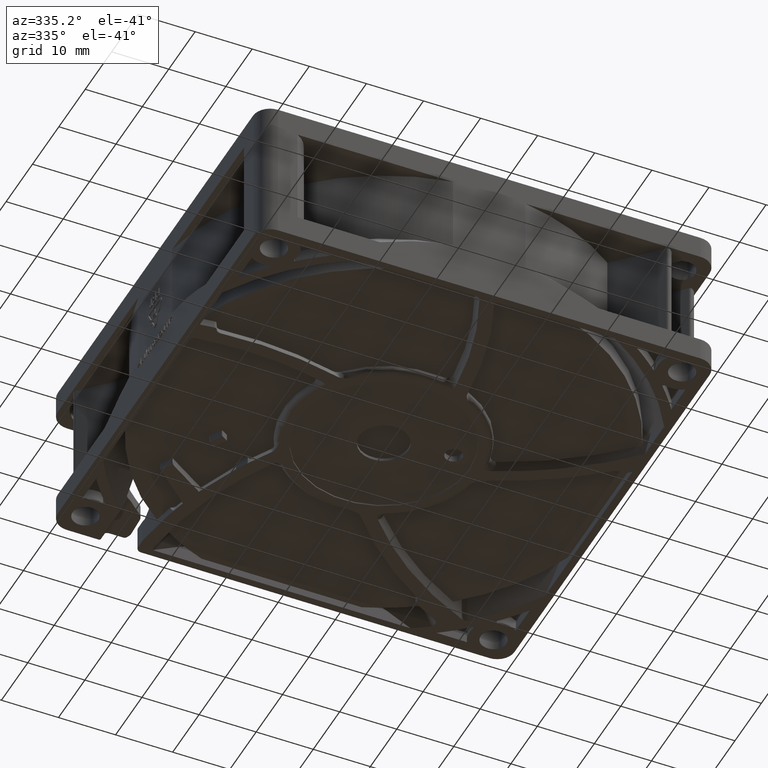
[diagram: clean part render]
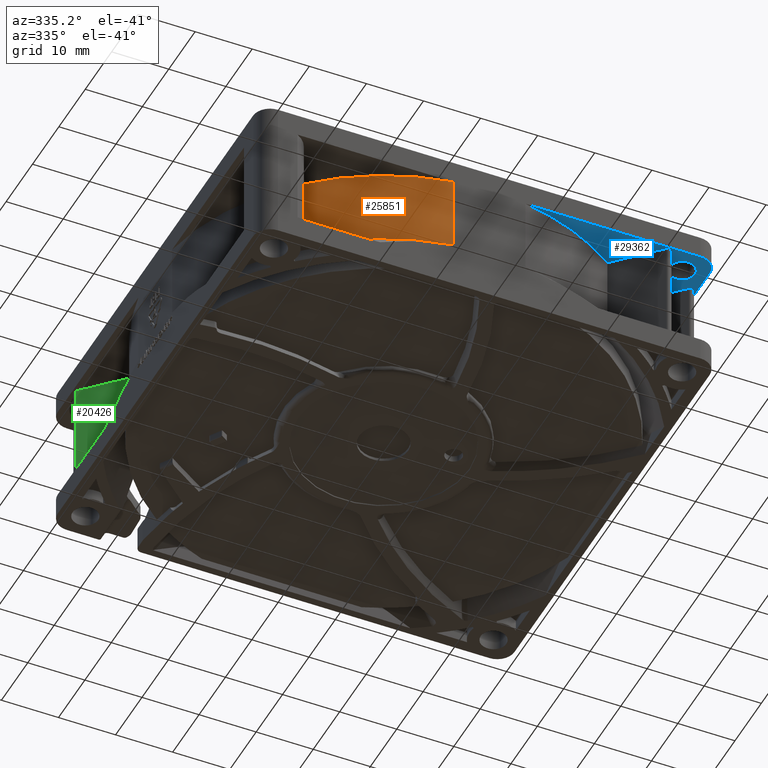
[diagram: same view with three faces highlighted in distinct colors, each labeled with its STEP entity id]
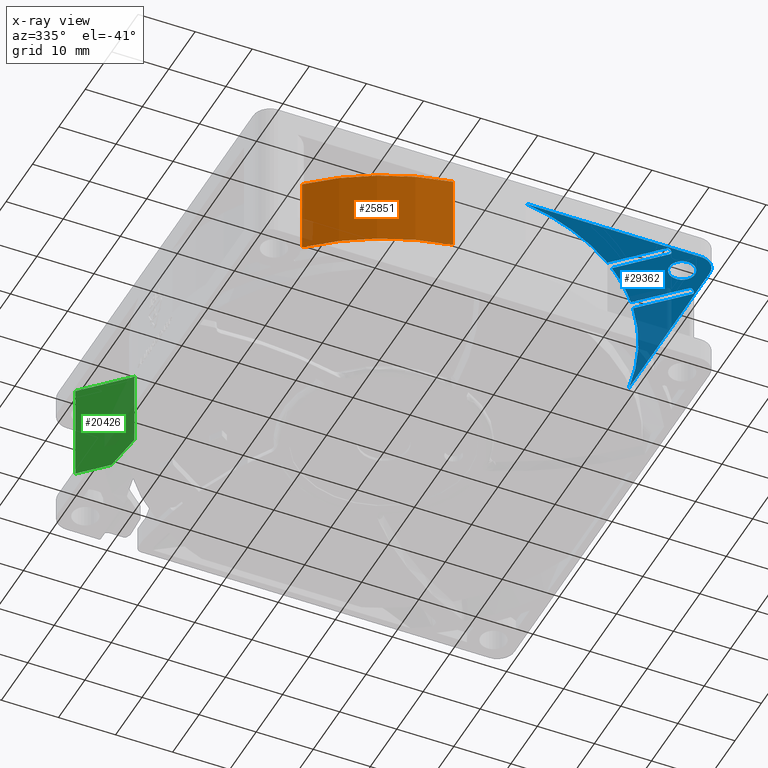
[diagram: x-ray of the same camera — body ghosted, the three highlighted faces saturated]
A machine part, auxiliary view with three faces highlighted in distinct colors.
The next image is the same camera in x-ray (body ghosted, the three faces saturated) — at least one of them is partly hidden behind the body in this view.
Their STEP definitions:

[orange] entity #25851 — the highlighted cylindrical surface (partial cylindrical patch) has radius 40.5 mm, axis along (-0, -0, 1).
#507 = CIRCLE ( 'NONE', #6168, 40.50000000000000000 ) ;
#3538 = FACE_OUTER_BOUND ( 'NONE', #7563, .T. ) ;
#3692 = VERTEX_POINT ( 'NONE', #8561 ) ;
#5702 = ORIENTED_EDGE ( 'NONE', *, *, #28337, .F. ) ;
#5842 = DIRECTION ( 'NONE',  ( -0.0000000000000000000, -0.0000000000000000000, 1.000000000000000000 ) ) ;
#6168 = AXIS2_PLACEMENT_3D ( 'NONE', #22745, #5842, #28241 ) ;
#6400 = CARTESIAN_POINT ( 'NONE',  ( -27.92198681256904500, -29.33620037494155100, -17.27999999999999800 ) ) ;
#6644 = CARTESIAN_POINT ( 'NONE',  ( 0.0000000000000000000, 0.0000000000000000000, 0.0000000000000000000 ) ) ;
#7563 = EDGE_LOOP ( 'NONE', ( #5702, #35670, #11071, #22264 ) ) ;
#7956 = AXIS2_PLACEMENT_3D ( 'NONE', #6644, #23443, #12413 ) ;
#8561 = CARTESIAN_POINT ( 'NONE',  ( -6.344288770224801900, -39.99999999999999300, -3.999999999999999100 ) ) ;
#9716 = EDGE_CURVE ( 'NONE', #21097, #3692, #27296, .T. ) ;
#11039 = CARTESIAN_POINT ( 'NONE',  ( -27.92198681256904200, -29.33620037494154400, -500000.0000000000600 ) ) ;
#11071 = ORIENTED_EDGE ( 'NONE', *, *, #9716, .T. ) ;
#11219 = EDGE_CURVE ( 'NONE', #19599, #3692, #507, .T. ) ;
#12413 = DIRECTION ( 'NONE',  ( 1.000000000000000000, 0.0000000000000000000, 0.0000000000000000000 ) ) ;
#13100 = DIRECTION ( 'NONE',  ( 1.000000000000000000, 0.0000000000000000000, 0.0000000000000000000 ) ) ;
#14481 = CARTESIAN_POINT ( 'NONE',  ( -27.92198681256904200, -29.33620037494154400, -3.999999999999999100 ) ) ;
#14790 = CARTESIAN_POINT ( 'NONE',  ( -6.344288770224801900, -39.99999999999999300, -17.27999999999999800 ) ) ;
#15087 = CYLINDRICAL_SURFACE ( 'NONE', #7956, 40.50000000000000000 ) ;
#16635 = CARTESIAN_POINT ( 'NONE',  ( -6.344288770224801900, -39.99999999999999300, 0.0000000000000000000 ) ) ;
#18411 = DIRECTION ( 'NONE',  ( -0.0000000000000000000, -0.0000000000000000000, 1.000000000000000000 ) ) ;
#19599 = VERTEX_POINT ( 'NONE', #14481 ) ;
#21097 = VERTEX_POINT ( 'NONE', #14790 ) ;
#22264 = ORIENTED_EDGE ( 'NONE', *, *, #11219, .F. ) ;
#22745 = CARTESIAN_POINT ( 'NONE',  ( 0.0000000000000000000, 0.0000000000000000000, -3.999999999999999100 ) ) ;
#23390 = VECTOR ( 'NONE', #30900, 1000.000000000000000 ) ;
#23443 = DIRECTION ( 'NONE',  ( -0.0000000000000000000, -0.0000000000000000000, 1.000000000000000000 ) ) ;
#25851 = ADVANCED_FACE ( 'NONE', ( #3538 ), #15087, .T. ) ;
#27274 = VERTEX_POINT ( 'NONE', #6400 ) ;
#27296 = LINE ( 'NONE', #16635, #30393 ) ;
#27774 = CIRCLE ( 'NONE', #36687, 40.50000000000000000 ) ;
#28241 = DIRECTION ( 'NONE',  ( 1.000000000000000000, 0.0000000000000000000, 0.0000000000000000000 ) ) ;
#28337 = EDGE_CURVE ( 'NONE', #27274, #19599, #30535, .T. ) ;
#30393 = VECTOR ( 'NONE', #36907, 1000.000000000000000 ) ;
#30535 = LINE ( 'NONE', #11039, #23390 ) ;
#30900 = DIRECTION ( 'NONE',  ( -0.0000000000000000000, -0.0000000000000000000, 1.000000000000000000 ) ) ;
#31379 = EDGE_CURVE ( 'NONE', #27274, #21097, #27774, .T. ) ;
#35462 = CARTESIAN_POINT ( 'NONE',  ( 0.0000000000000000000, 0.0000000000000000000, -17.27999999999999800 ) ) ;
#35670 = ORIENTED_EDGE ( 'NONE', *, *, #31379, .T. ) ;
#36687 = AXIS2_PLACEMENT_3D ( 'NONE', #35462, #18411, #13100 ) ;
#36907 = DIRECTION ( 'NONE',  ( -0.0000000000000000000, -0.0000000000000000000, 1.000000000000000000 ) ) ;

[blue] entity #29362 — the highlighted planar face has unit normal (0, -0, 1).
#118 = CARTESIAN_POINT ( 'NONE',  ( 32.28517677218592800, -39.21482322781408700, -4.000000000000000000 ) ) ;
#674 = EDGE_CURVE ( 'NONE', #6509, #34739, #15394, .T. ) ;
#744 = AXIS2_PLACEMENT_3D ( 'NONE', #1094, #32287, #9905 ) ;
#884 = CARTESIAN_POINT ( 'NONE',  ( 32.50424371614428800, -24.16038369814302200, -3.999999999999999100 ) ) ;
#1094 = CARTESIAN_POINT ( 'NONE',  ( 38.86126983722081000, -31.93162338159265100, -4.000000000019099400 ) ) ;
#1863 = CARTESIAN_POINT ( 'NONE',  ( 24.16038369814302200, -32.50424371614428800, -3.999999999999999100 ) ) ;
#2073 = CARTESIAN_POINT ( 'NONE',  ( 0.0000000000000000000, 0.0000000000000000000, -3.999999999999999100 ) ) ;
#2623 = LINE ( 'NONE', #23142, #8835 ) ;
#3274 = VERTEX_POINT ( 'NONE', #34568 ) ;
#3375 = ORIENTED_EDGE ( 'NONE', *, *, #21165, .F. ) ;
#3484 = CARTESIAN_POINT ( 'NONE',  ( 35.75000000000000000, -35.75000000000000000, -4.000000000000000000 ) ) ;
#3903 = ORIENTED_EDGE ( 'NONE', *, *, #22199, .T. ) ;
#4080 = VERTEX_POINT ( 'NONE', #17133 ) ;
#4225 = AXIS2_PLACEMENT_3D ( 'NONE', #15832, #35722, #18688 ) ;
#4335 = CIRCLE ( 'NONE', #15922, 0.5000000000000004400 ) ;
#4372 = CARTESIAN_POINT ( 'NONE',  ( 31.93162338159265100, -38.86126983722081000, -4.000000000019099400 ) ) ;
#4467 = ORIENTED_EDGE ( 'NONE', *, *, #17223, .F. ) ;
#4480 = DIRECTION ( 'NONE',  ( -0.0000000000000000000, -0.0000000000000000000, 1.000000000000000000 ) ) ;
#4481 = AXIS2_PLACEMENT_3D ( 'NONE', #5869, #31481, #8735 ) ;
#4757 = DIRECTION ( 'NONE',  ( -1.000000000000000000, -8.673617379884035500E-017, -0.0000000000000000000 ) ) ;
#4893 = DIRECTION ( 'NONE',  ( 1.000000000000000000, 0.0000000000000000000, 0.0000000000000000000 ) ) ;
#5483 = LINE ( 'NONE', #26707, #22398 ) ;
#5846 = VERTEX_POINT ( 'NONE', #17400 ) ;
#5869 = CARTESIAN_POINT ( 'NONE',  ( 0.0000000000000000000, 0.0000000000000000000, -3.999999999999999100 ) ) ;
#6062 = ORIENTED_EDGE ( 'NONE', *, *, #13313, .T. ) ;
#6509 = VERTEX_POINT ( 'NONE', #118 ) ;
#6758 = DIRECTION ( 'NONE',  ( 1.000000000000000000, 0.0000000000000000000, 0.0000000000000000000 ) ) ;
#6778 = CIRCLE ( 'NONE', #28394, 2.250000000000001800 ) ;
#6799 = CIRCLE ( 'NONE', #4481, 40.50000000000000000 ) ;
#7180 = EDGE_CURVE ( 'NONE', #26839, #28739, #20288, .T. ) ;
#7337 = ORIENTED_EDGE ( 'NONE', *, *, #13467, .T. ) ;
#7659 = VERTEX_POINT ( 'NONE', #14556 ) ;
#7768 = CARTESIAN_POINT ( 'NONE',  ( 31.93162338159265100, -38.86126983722081000, -4.000000000019099400 ) ) ;
#8226 = FACE_OUTER_BOUND ( 'NONE', #18654, .T. ) ;
#8365 = CARTESIAN_POINT ( 'NONE',  ( 39.56837661840736300, -31.22451660040610100, -4.000000000000000000 ) ) ;
#8735 = DIRECTION ( 'NONE',  ( 1.000000000000000000, 0.0000000000000000000, 0.0000000000000000000 ) ) ;
#8835 = VECTOR ( 'NONE', #9605, 1000.000000000000000 ) ;
#8932 = AXIS2_PLACEMENT_3D ( 'NONE', #34861, #12293, #6758 ) ;
#8964 = DIRECTION ( 'NONE',  ( 0.7071067811865474600, -0.7071067811865474600, 0.0000000000000000000 ) ) ;
#8996 = CARTESIAN_POINT ( 'NONE',  ( 39.71482322781409400, -31.57806999099937400, -4.000000000019099400 ) ) ;
#9047 = DIRECTION ( 'NONE',  ( -0.0000000000000000000, -0.0000000000000000000, 1.000000000000000000 ) ) ;
#9057 = EDGE_CURVE ( 'NONE', #28739, #20176, #28676, .T. ) ;
#9066 = ORIENTED_EDGE ( 'NONE', *, *, #9686, .T. ) ;
#9082 = VERTEX_POINT ( 'NONE', #27631 ) ;
#9112 = DIRECTION ( 'NONE',  ( -0.0000000000000000000, -0.0000000000000000000, 1.000000000000000000 ) ) ;
#9433 = ORIENTED_EDGE ( 'NONE', *, *, #27444, .T. ) ;
#9605 = DIRECTION ( 'NONE',  ( 0.7071067811865479100, -0.7071067811865472400, 0.0000000000000000000 ) ) ;
#9665 = CARTESIAN_POINT ( 'NONE',  ( 31.22451660040610100, -39.56837661840736300, -4.000000000000000000 ) ) ;
#9686 = EDGE_CURVE ( 'NONE', #9082, #7659, #6799, .T. ) ;
#9822 = CIRCLE ( 'NONE', #8932, 0.5000000000000004400 ) ;
#9905 = DIRECTION ( 'NONE',  ( 1.000000000000000000, 0.0000000000000000000, 0.0000000000000000000 ) ) ;
#10072 = CARTESIAN_POINT ( 'NONE',  ( 39.92193000900063300, -31.57806999099937400, -4.000000000000000000 ) ) ;
#10286 = VERTEX_POINT ( 'NONE', #8365 ) ;
#10517 = CARTESIAN_POINT ( 'NONE',  ( 39.21482322781408700, -31.57806999099937400, -4.000000000019099400 ) ) ;
#10692 = VERTEX_POINT ( 'NONE', #34902 ) ;
#10713 = PLANE ( 'NONE',  #34214 ) ;
#10752 = DIRECTION ( 'NONE',  ( -0.0000000000000000000, -0.0000000000000000000, 1.000000000000000000 ) ) ;
#11155 = DIRECTION ( 'NONE',  ( -0.0000000000000000000, -0.0000000000000000000, 1.000000000000000000 ) ) ;
#11517 = VERTEX_POINT ( 'NONE', #884 ) ;
#11885 = DIRECTION ( 'NONE',  ( 1.000000000000000000, 0.0000000000000000000, 0.0000000000000000000 ) ) ;
#12149 = EDGE_CURVE ( 'NONE', #3274, #10692, #15199, .T. ) ;
#12213 = VERTEX_POINT ( 'NONE', #9665 ) ;
#12293 = DIRECTION ( 'NONE',  ( -0.0000000000000000000, -0.0000000000000000000, 1.000000000000000000 ) ) ;
#12301 = ORIENTED_EDGE ( 'NONE', *, *, #16935, .T. ) ;
#12706 = VECTOR ( 'NONE', #4757, 1000.000000000000000 ) ;
#12929 = CARTESIAN_POINT ( 'NONE',  ( 0.0000000000000000000, 0.0000000000000000000, -3.999999999999999100 ) ) ;
#12945 = CARTESIAN_POINT ( 'NONE',  ( 40.00000000000000000, -39.99999999999998600, -4.000000000000000000 ) ) ;
#13072 = DIRECTION ( 'NONE',  ( -0.7071067811865429100, -0.7071067811865522400, 0.0000000000000000000 ) ) ;
#13313 = EDGE_CURVE ( 'NONE', #25321, #24064, #9822, .T. ) ;
#13467 = EDGE_CURVE ( 'NONE', #24064, #10286, #30715, .T. ) ;
#13870 = CIRCLE ( 'NONE', #19130, 40.50000000000000000 ) ;
#14137 = DIRECTION ( 'NONE',  ( -0.7071067811865474600, 0.7071067811865474600, -0.0000000000000000000 ) ) ;
#14556 = CARTESIAN_POINT ( 'NONE',  ( 31.57958555838703800, -25.35704588394541000, -3.999999999999999100 ) ) ;
#14907 = ORIENTED_EDGE ( 'NONE', *, *, #23574, .T. ) ;
#14988 = VECTOR ( 'NONE', #13072, 1000.000000000000000 ) ;
#14990 = DIRECTION ( 'NONE',  ( -0.7071067811865522400, -0.7071067811865429100, 0.0000000000000000000 ) ) ;
#15199 = CIRCLE ( 'NONE', #744, 0.5000000000000004400 ) ;
#15377 = AXIS2_PLACEMENT_3D ( 'NONE', #7768, #27554, #24683 ) ;
#15394 = LINE ( 'NONE', #20687, #30093 ) ;
#15523 = DIRECTION ( 'NONE',  ( -0.7071067811865472400, 0.7071067811865479100, -0.0000000000000000000 ) ) ;
#15820 = ORIENTED_EDGE ( 'NONE', *, *, #18832, .T. ) ;
#15832 = CARTESIAN_POINT ( 'NONE',  ( 37.00000000000000000, -36.99999999999998600, -4.000000000000000000 ) ) ;
#15922 = AXIS2_PLACEMENT_3D ( 'NONE', #4372, #4480, #33328 ) ;
#15937 = CARTESIAN_POINT ( 'NONE',  ( 40.00000000000000000, -39.99999999999998600, -4.000000000000000000 ) ) ;
#16935 = EDGE_CURVE ( 'NONE', #23387, #5846, #4335, .T. ) ;
#17133 = CARTESIAN_POINT ( 'NONE',  ( 38.00000000000000000, -35.75000000000000000, -4.000000000000000000 ) ) ;
#17155 = VERTEX_POINT ( 'NONE', #1863 ) ;
#17223 = EDGE_CURVE ( 'NONE', #25321, #10692, #28752, .T. ) ;
#17400 = CARTESIAN_POINT ( 'NONE',  ( 32.28517677218592800, -38.50771644662754100, -4.000000000000000000 ) ) ;
#18308 = AXIS2_PLACEMENT_3D ( 'NONE', #3484, #9047, #23104 ) ;
#18654 = EDGE_LOOP ( 'NONE', ( #27763, #21347, #29192, #9433, #12301, #25199, #9066, #3375, #32560, #4467, #6062, #7337, #24804, #29570, #24969, #24743, #28619, #14907 ) ) ;
#18688 = DIRECTION ( 'NONE',  ( 1.000000000000000000, 0.0000000000000000000, 0.0000000000000000000 ) ) ;
#18823 = DIRECTION ( 'NONE',  ( 1.000000000000000000, 0.0000000000000000000, 0.0000000000000000000 ) ) ;
#18832 = EDGE_CURVE ( 'NONE', #36346, #4080, #30889, .T. ) ;
#18949 = DIRECTION ( 'NONE',  ( -0.0000000000000000000, -0.0000000000000000000, 1.000000000000000000 ) ) ;
#19130 = AXIS2_PLACEMENT_3D ( 'NONE', #12929, #21335, #27184 ) ;
#19353 = CARTESIAN_POINT ( 'NONE',  ( 40.00000000000000000, -6.344288770224753900, -3.999999999999999100 ) ) ;
#19732 = EDGE_CURVE ( 'NONE', #12213, #34739, #24657, .T. ) ;
#20176 = VERTEX_POINT ( 'NONE', #33378 ) ;
#20288 = CIRCLE ( 'NONE', #4225, 3.000000000000002700 ) ;
#20432 = CARTESIAN_POINT ( 'NONE',  ( 32.43162338159265100, -38.86126983722081000, -4.000000000019099400 ) ) ;
#20667 = FACE_BOUND ( 'NONE', #28043, .T. ) ;
#20679 = VECTOR ( 'NONE', #35661, 1000.000000000000000 ) ;
#20687 = CARTESIAN_POINT ( 'NONE',  ( 32.63873016277920400, -38.86126983722081700, -4.000000000000000000 ) ) ;
#21165 = EDGE_CURVE ( 'NONE', #3274, #7659, #5483, .T. ) ;
#21335 = DIRECTION ( 'NONE',  ( -0.0000000000000000000, -0.0000000000000000000, 1.000000000000000000 ) ) ;
#21347 = ORIENTED_EDGE ( 'NONE', *, *, #19732, .T. ) ;
#22199 = EDGE_CURVE ( 'NONE', #4080, #36346, #6778, .T. ) ;
#22382 = AXIS2_PLACEMENT_3D ( 'NONE', #35091, #9112, #11885 ) ;
#22398 = VECTOR ( 'NONE', #15523, 1000.000000000000000 ) ;
#23029 = CARTESIAN_POINT ( 'NONE',  ( 32.50424371614428800, -24.16038369814302200, -4.000000000000000000 ) ) ;
#23104 = DIRECTION ( 'NONE',  ( 1.000000000000000000, 0.0000000000000000000, 0.0000000000000000000 ) ) ;
#23142 = CARTESIAN_POINT ( 'NONE',  ( 25.35704588394541800, -31.57958555838703800, -4.000000000000000000 ) ) ;
#23387 = VERTEX_POINT ( 'NONE', #20432 ) ;
#23574 = EDGE_CURVE ( 'NONE', #20176, #17155, #31608, .T. ) ;
#24064 = VERTEX_POINT ( 'NONE', #8996 ) ;
#24657 = CIRCLE ( 'NONE', #22382, 0.5000000000000004400 ) ;
#24683 = DIRECTION ( 'NONE',  ( 1.000000000000000000, 0.0000000000000000000, 0.0000000000000000000 ) ) ;
#24743 = ORIENTED_EDGE ( 'NONE', *, *, #7180, .T. ) ;
#24804 = ORIENTED_EDGE ( 'NONE', *, *, #26316, .F. ) ;
#24909 = AXIS2_PLACEMENT_3D ( 'NONE', #10517, #10752, #4893 ) ;
#24969 = ORIENTED_EDGE ( 'NONE', *, *, #30103, .T. ) ;
#25199 = ORIENTED_EDGE ( 'NONE', *, *, #26411, .F. ) ;
#25321 = VERTEX_POINT ( 'NONE', #35423 ) ;
#25424 = CARTESIAN_POINT ( 'NONE',  ( 24.16038369814302200, -32.50424371614428800, -4.000000000000000000 ) ) ;
#26069 = VECTOR ( 'NONE', #14137, 1000.000000000000100 ) ;
#26316 = EDGE_CURVE ( 'NONE', #11517, #10286, #29266, .T. ) ;
#26411 = EDGE_CURVE ( 'NONE', #9082, #5846, #2623, .T. ) ;
#26707 = CARTESIAN_POINT ( 'NONE',  ( 31.57958555838703800, -25.35704588394541800, -4.000000000000000000 ) ) ;
#26839 = VERTEX_POINT ( 'NONE', #34661 ) ;
#27136 = VERTEX_POINT ( 'NONE', #19353 ) ;
#27184 = DIRECTION ( 'NONE',  ( 1.000000000000000000, 0.0000000000000000000, 0.0000000000000000000 ) ) ;
#27266 = CARTESIAN_POINT ( 'NONE',  ( 37.00000000000000000, -39.99999999999998600, -4.000000000000000000 ) ) ;
#27444 = EDGE_CURVE ( 'NONE', #6509, #23387, #29672, .T. ) ;
#27554 = DIRECTION ( 'NONE',  ( -0.0000000000000000000, -0.0000000000000000000, 1.000000000000000000 ) ) ;
#27631 = CARTESIAN_POINT ( 'NONE',  ( 25.35704588394541000, -31.57958555838703800, -3.999999999999999100 ) ) ;
#27763 = ORIENTED_EDGE ( 'NONE', *, *, #28301, .F. ) ;
#28043 = EDGE_LOOP ( 'NONE', ( #15820, #3903 ) ) ;
#28301 = EDGE_CURVE ( 'NONE', #12213, #17155, #31850, .T. ) ;
#28394 = AXIS2_PLACEMENT_3D ( 'NONE', #33663, #11155, #31033 ) ;
#28619 = ORIENTED_EDGE ( 'NONE', *, *, #9057, .T. ) ;
#28676 = LINE ( 'NONE', #15937, #12706 ) ;
#28739 = VERTEX_POINT ( 'NONE', #27266 ) ;
#28752 = LINE ( 'NONE', #10072, #14988 ) ;
#29192 = ORIENTED_EDGE ( 'NONE', *, *, #674, .F. ) ;
#29266 = LINE ( 'NONE', #23029, #32426 ) ;
#29362 = ADVANCED_FACE ( 'NONE', ( #20667, #8226 ), #10713, .F. ) ;
#29570 = ORIENTED_EDGE ( 'NONE', *, *, #36864, .T. ) ;
#29672 = CIRCLE ( 'NONE', #15377, 0.5000000000000004400 ) ;
#30093 = VECTOR ( 'NONE', #14990, 1000.000000000000000 ) ;
#30103 = EDGE_CURVE ( 'NONE', #27136, #26839, #32261, .T. ) ;
#30254 = CARTESIAN_POINT ( 'NONE',  ( 31.93162338159264700, -39.56837661840737000, -4.000000000000000000 ) ) ;
#30715 = CIRCLE ( 'NONE', #24909, 0.5000000000000004400 ) ;
#30889 = CIRCLE ( 'NONE', #18308, 2.250000000000001800 ) ;
#31033 = DIRECTION ( 'NONE',  ( 1.000000000000000000, 0.0000000000000000000, 0.0000000000000000000 ) ) ;
#31481 = DIRECTION ( 'NONE',  ( -0.0000000000000000000, -0.0000000000000000000, 1.000000000000000000 ) ) ;
#31608 = CIRCLE ( 'NONE', #36315, 40.50000000000000000 ) ;
#31850 = LINE ( 'NONE', #25424, #26069 ) ;
#32261 = LINE ( 'NONE', #12945, #20679 ) ;
#32287 = DIRECTION ( 'NONE',  ( -0.0000000000000000000, -0.0000000000000000000, 1.000000000000000000 ) ) ;
#32426 = VECTOR ( 'NONE', #8964, 1000.000000000000100 ) ;
#32560 = ORIENTED_EDGE ( 'NONE', *, *, #12149, .T. ) ;
#33328 = DIRECTION ( 'NONE',  ( 1.000000000000000000, 0.0000000000000000000, 0.0000000000000000000 ) ) ;
#33378 = CARTESIAN_POINT ( 'NONE',  ( 6.344288770224808100, -39.99999999999999300, -3.999999999999999100 ) ) ;
#33453 = DIRECTION ( 'NONE',  ( 0.0000000000000000000, -0.0000000000000000000, 1.000000000000000000 ) ) ;
#33663 = CARTESIAN_POINT ( 'NONE',  ( 35.75000000000000000, -35.75000000000000000, -4.000000000000000000 ) ) ;
#34214 = AXIS2_PLACEMENT_3D ( 'NONE', #36553, #33453, #36445 ) ;
#34568 = CARTESIAN_POINT ( 'NONE',  ( 38.50771644662754100, -32.28517677218592800, -4.000000000000000000 ) ) ;
#34661 = CARTESIAN_POINT ( 'NONE',  ( 40.00000000000000000, -36.99999999999998600, -4.000000000000000000 ) ) ;
#34739 = VERTEX_POINT ( 'NONE', #30254 ) ;
#34861 = CARTESIAN_POINT ( 'NONE',  ( 39.21482322781408700, -31.57806999099937400, -4.000000000019099400 ) ) ;
#34902 = CARTESIAN_POINT ( 'NONE',  ( 39.21482322781408700, -32.28517677218592800, -4.000000000000000000 ) ) ;
#35091 = CARTESIAN_POINT ( 'NONE',  ( 31.57806999099937400, -39.21482322781408700, -4.000000000019099400 ) ) ;
#35423 = CARTESIAN_POINT ( 'NONE',  ( 39.56837661840737000, -31.93162338159264700, -4.000000000000000000 ) ) ;
#35661 = DIRECTION ( 'NONE',  ( 0.0000000000000000000, -1.000000000000000000, -0.0000000000000000000 ) ) ;
#35722 = DIRECTION ( 'NONE',  ( 0.0000000000000000000, 0.0000000000000000000, -1.000000000000000000 ) ) ;
#36315 = AXIS2_PLACEMENT_3D ( 'NONE', #2073, #18949, #18823 ) ;
#36346 = VERTEX_POINT ( 'NONE', #36545 ) ;
#36445 = DIRECTION ( 'NONE',  ( 1.000000000000000000, 0.0000000000000000000, 0.0000000000000000000 ) ) ;
#36545 = CARTESIAN_POINT ( 'NONE',  ( 33.49999999999999300, -35.75000000000000000, -4.000000000000000000 ) ) ;
#36553 = CARTESIAN_POINT ( 'NONE',  ( 60.00000000000000000, 0.0000000000000000000, -4.000000000000000000 ) ) ;
#36864 = EDGE_CURVE ( 'NONE', #11517, #27136, #13870, .T. ) ;

[green] entity #20426 — the highlighted planar face has unit normal (0.7071, 0.7071, 0).
#370 = VERTEX_POINT ( 'NONE', #33472 ) ;
#428 = CARTESIAN_POINT ( 'NONE',  ( -35.25337543870997300, 26.90951542070871500, -21.39999999999999900 ) ) ;
#2699 = VECTOR ( 'NONE', #13272, 1000.000000000000000 ) ;
#3841 = AXIS2_PLACEMENT_3D ( 'NONE', #8740, #11383, #31236 ) ;
#4468 = LINE ( 'NONE', #22275, #2699 ) ;
#5634 = PLANE ( 'NONE',  #3841 ) ;
#7351 = VERTEX_POINT ( 'NONE', #18076 ) ;
#7376 = EDGE_CURVE ( 'NONE', #370, #7542, #17619, .T. ) ;
#7542 = VERTEX_POINT ( 'NONE', #21574 ) ;
#8740 = CARTESIAN_POINT ( 'NONE',  ( -4.171930009000629300, -4.171930009000629300, -500000.0000000000600 ) ) ;
#8805 = VERTEX_POINT ( 'NONE', #13507 ) ;
#9638 = LINE ( 'NONE', #15099, #20250 ) ;
#9849 = EDGE_CURVE ( 'NONE', #7351, #370, #29481, .T. ) ;
#10530 = CARTESIAN_POINT ( 'NONE',  ( -33.42107643680833500, 25.07721641880707600, -18.65272519616958700 ) ) ;
#11383 = DIRECTION ( 'NONE',  ( 0.7071067811865475700, 0.7071067811865475700, 0.0000000000000000000 ) ) ;
#12567 = VERTEX_POINT ( 'NONE', #428 ) ;
#13272 = DIRECTION ( 'NONE',  ( 0.0000000000000000000, -0.0000000000000000000, -1.000000000000000000 ) ) ;
#13507 = CARTESIAN_POINT ( 'NONE',  ( -39.56837661840736300, 31.22451660040610100, -21.40000000002828500 ) ) ;
#13528 = EDGE_CURVE ( 'NONE', #7542, #8805, #4468, .T. ) ;
#14974 = B_SPLINE_CURVE_WITH_KNOTS ( 'NONE', 3,
 ( #24422, #10530, #15860, #18995 ),
 .UNSPECIFIED., .F., .F.,
 ( 4, 4 ),
 ( 2.751116267021211800E-007, 0.005665065527523309300 ),
 .UNSPECIFIED. ) ;
#15099 = CARTESIAN_POINT ( 'NONE',  ( -4.171930009000629300, -4.171930009000629300, -21.40000000002828500 ) ) ;
#15860 = CARTESIAN_POINT ( 'NONE',  ( -34.33741391840413100, 25.99355390040287600, -20.02611211294466600 ) ) ;
#15920 = ORIENTED_EDGE ( 'NONE', *, *, #28558, .F. ) ;
#17619 = LINE ( 'NONE', #36766, #22970 ) ;
#18076 = CARTESIAN_POINT ( 'NONE',  ( -32.50424371614428100, 24.16038369814301500, -17.27999999999999800 ) ) ;
#18312 = ORIENTED_EDGE ( 'NONE', *, *, #13528, .T. ) ;
#18995 = CARTESIAN_POINT ( 'NONE',  ( -35.25337543870997300, 26.90951542070871500, -21.39999999999999900 ) ) ;
#19228 = ORIENTED_EDGE ( 'NONE', *, *, #9849, .T. ) ;
#20250 = VECTOR ( 'NONE', #21042, 1000.000000000000100 ) ;
#20426 = ADVANCED_FACE ( 'NONE', ( #35807 ), #5634, .F. ) ;
#21042 = DIRECTION ( 'NONE',  ( -0.7071067811865474600, 0.7071067811865474600, 0.0000000000000000000 ) ) ;
#21574 = CARTESIAN_POINT ( 'NONE',  ( -39.56837661840736300, 31.22451660040610100, -4.000000000000000000 ) ) ;
#22275 = CARTESIAN_POINT ( 'NONE',  ( -39.56837661840735600, 31.22451660040609400, -21.40000000002828500 ) ) ;
#22970 = VECTOR ( 'NONE', #27644, 1000.000000000000100 ) ;
#24422 = CARTESIAN_POINT ( 'NONE',  ( -32.50424371614428100, 24.16038369814301500, -17.27999999999999800 ) ) ;
#25679 = EDGE_LOOP ( 'NONE', ( #34046, #18312, #15920, #33910, #19228 ) ) ;
#27644 = DIRECTION ( 'NONE',  ( -0.7071067811865474600, 0.7071067811865474600, 0.0000000000000000000 ) ) ;
#28558 = EDGE_CURVE ( 'NONE', #12567, #8805, #9638, .T. ) ;
#28668 = CARTESIAN_POINT ( 'NONE',  ( -32.50424371614428800, 24.16038369814302200, -500000.0000000000600 ) ) ;
#29481 = LINE ( 'NONE', #28668, #36644 ) ;
#31236 = DIRECTION ( 'NONE',  ( -0.7071067811865474600, 0.7071067811865474600, 0.0000000000000000000 ) ) ;
#31647 = DIRECTION ( 'NONE',  ( -0.0000000000000000000, -0.0000000000000000000, 1.000000000000000000 ) ) ;
#32556 = EDGE_CURVE ( 'NONE', #7351, #12567, #14974, .T. ) ;
#33472 = CARTESIAN_POINT ( 'NONE',  ( -32.50424371614428100, 24.16038369814301500, -3.999999999999999100 ) ) ;
#33910 = ORIENTED_EDGE ( 'NONE', *, *, #32556, .F. ) ;
#34046 = ORIENTED_EDGE ( 'NONE', *, *, #7376, .T. ) ;
#35807 = FACE_OUTER_BOUND ( 'NONE', #25679, .T. ) ;
#36644 = VECTOR ( 'NONE', #31647, 1000.000000000000000 ) ;
#36766 = CARTESIAN_POINT ( 'NONE',  ( -4.171930009000629300, -4.171930009000629300, -4.000000000000000000 ) ) ;